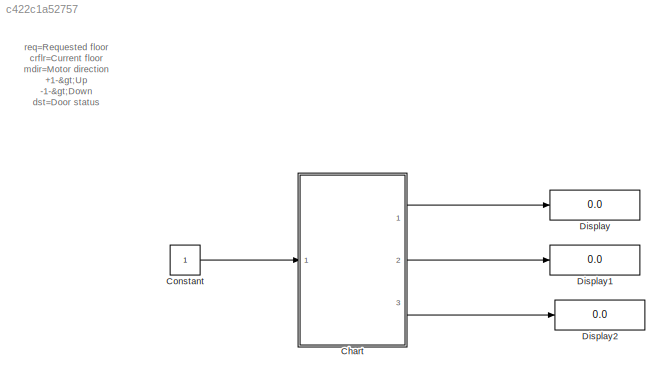
MODEL slx_c422c1a52757
KIND model
CONFIG AbsTol = auto
CONFIG EnableMultiTasking = off
CONFIG FixedStep = auto
CONFIG MaxStep = auto
CONFIG MinStep = auto
CONFIG RelTol = 1e-3
CONFIG SampleTimeConstraint = Unconstrained
CONFIG SolverName = VariableStepAuto
CONFIG StartTime = 0.0
CONFIG StopTime = 10.0
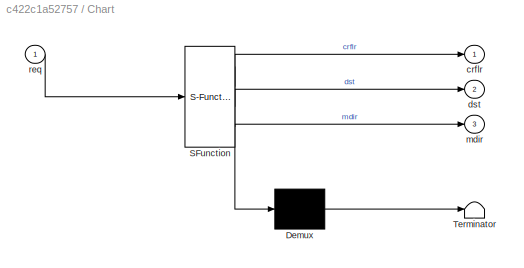
BLOCK [SubSystem] Chart
  ErrorFcn = Stateflow.Translate.translate
  PermitHierarchicalResolution = ExplicitOnly
  Ports = [1, 3]
  RequestExecContextInheritance = off
  SFBlockType = Chart
  TreatAsAtomicUnit = on
BLOCK [Demux] Chart/ Demux 
  Outputs = 1
  Ports = [1, 1]
BLOCK [S-Function] Chart/ SFunction 
  EnableBusSupport = on
  FunctionName = sf_sfun
  PortCounts = [1 4]
  Ports = [1, 4]
  SFcnIsStateOwnerBlock = off
  SFunctionDeploymentMode = off
  Tag = Stateflow S-Function 3
BLOCK [Terminator] Chart/ Terminator 
BLOCK [Outport] Chart/crflr
BLOCK [Outport] Chart/dst
  Port = 2
BLOCK [Outport] Chart/mdir
  Port = 3
BLOCK [Inport] Chart/req
BLOCK [Constant] Constant
BLOCK [Display] Display
  Decimation = 1
  Ports = [1]
BLOCK [Display] Display1
  Decimation = 1
  Ports = [1]
BLOCK [Display] Display2
  Decimation = 1
  Ports = [1]
ANNOTATION (root): req=Requested floor crflr=Current floor mdir=Motor direction +1->Up -1->Down dst=Door status +1->close 0->open
LINE Chart:1 -> Display:1
LINE Chart:2 -> Display1:1
LINE Chart:3 -> Display2:1
LINE Constant:1 -> Chart:1
CHART Chart states=7 transitions=10
  STATE_LABEL 'Elevator'
  STATE_LABEL 'Idle\nentry:mdir=0;\n'
  STATE_LABEL 'Door_closed\nentry:dst=1;\n'
  STATE_LABEL 'Down\nentry:mdir=-1;\nduring:crflr=crflr-1;'
  STATE_LABEL 'Up\nentry:mdir=1;\nduring:crflr=crflr+1;'
  STATE_LABEL 'Stop\nentry:mdir=0;dst=1;\nduring:mdir=0;'
  STATE_LABEL 'Door_open\nentry:dst=0;\nduring:dst=0;mdir=0;'
  STATE_LABEL '[req==crflr]'
  STATE_LABEL 'after(2,sec)'
  STATE_LABEL '[req~=crflr]'
  STATE_LABEL '[req>crflr]'
  STATE_LABEL '[req<crflr]'
  STATE_LABEL '[req==crflr]'
  STATE_LABEL '[req==crflr]'
  STATE_LABEL '[req==crflr]'
  STATE_LABEL 'Idle\nentry:mdir=0;\n'
  STATE_LABEL 'Door_closed\nentry:dst=1;\n'
  STATE_LABEL 'Down\nentry:mdir=-1;\nduring:crflr=crflr-1;'
  STATE_LABEL 'Up\nentry:mdir=1;\nduring:crflr=crflr+1;'
  STATE_LABEL 'Stop\nentry:mdir=0;dst=1;\nduring:mdir=0;'
  STATE_LABEL 'Door_open\nentry:dst=0;\nduring:dst=0;mdir=0;'
CHART  states=0 transitions=0
